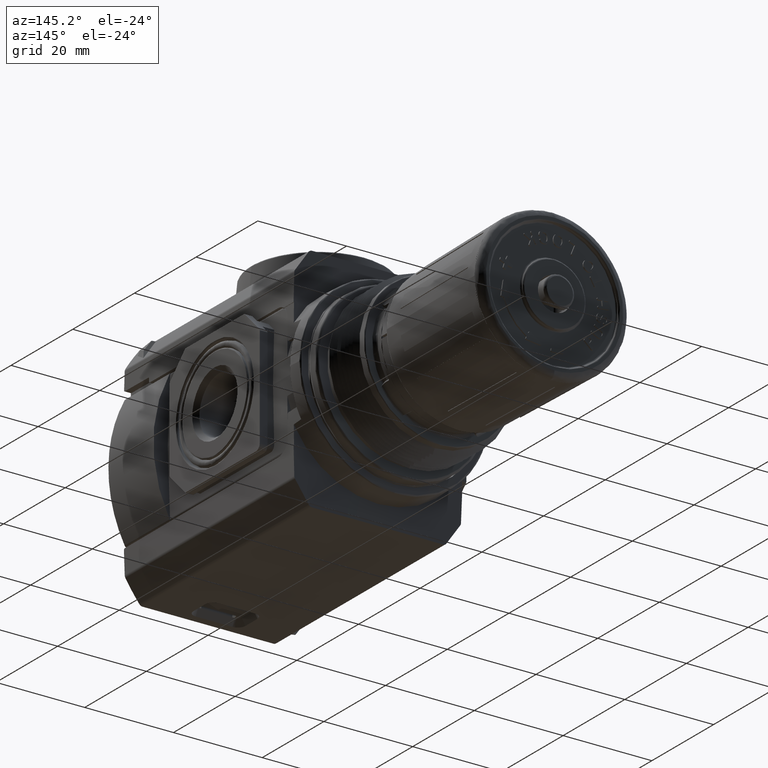
[diagram: clean part render]
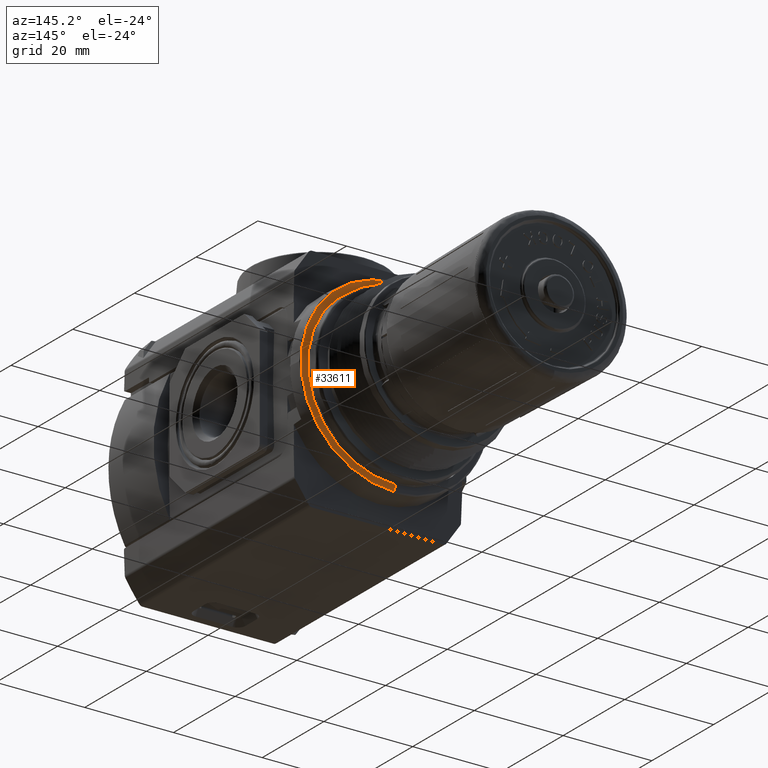
[diagram: same view with one face highlighted and labeled with its STEP entity id]
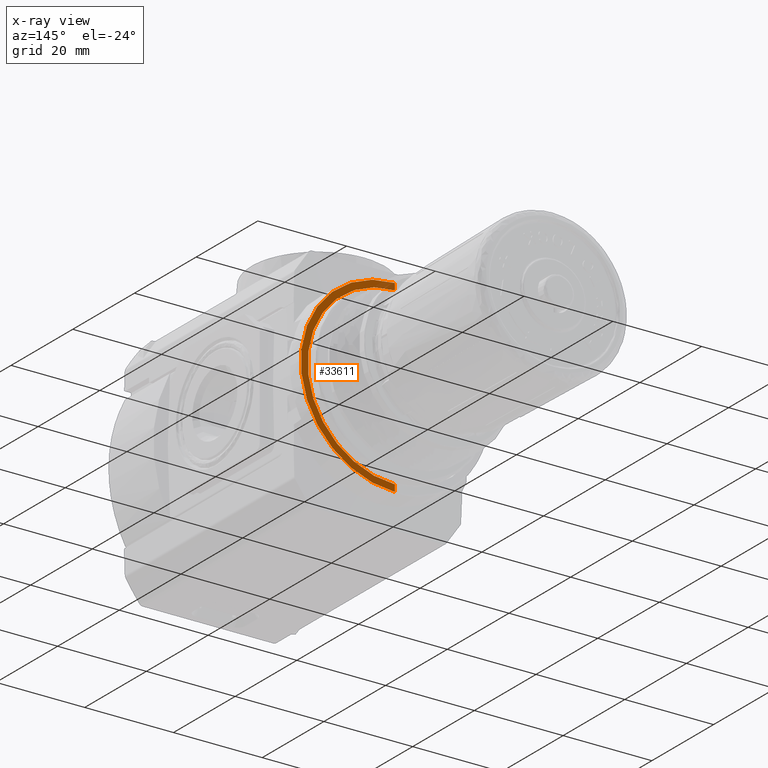
[diagram: x-ray of the same camera — body ghosted, the highlighted face saturated]
A machine part, auxiliary view. The second image highlights one B-rep face of the part: STEP entity #33611.
The next image is the same camera in x-ray: the body ghosted, the highlighted face saturated — about 6% of this face is hidden behind the body in this view.
In plain terms, the highlighted conical surface has half-angle 88 deg.
Its self-contained STEP definition (entity closure, byte-faithful):
#147 = VECTOR ( 'NONE', #9584, 39.37007874015748143 ) ;
#1104 = CARTESIAN_POINT ( 'NONE',  ( 0.000000000000000000, 2.385825571031360059, -0.7736564285650251449 ) ) ;
#5614 = ORIENTED_EDGE ( 'NONE', *, *, #7530, .T. ) ;
#5835 = DIRECTION ( 'NONE',  ( 0.000000000000000000, -1.000000000000000000, 0.000000000000000000 ) ) ;
#6787 = DIRECTION ( 'NONE',  ( 1.223900777408084576E-16, -0.03489949665753781100, 0.9993908270206659505 ) ) ;
#6955 = CARTESIAN_POINT ( 'NONE',  ( 0.000000000000000000, 2.383745076119717865, 0.000000000000000000 ) ) ;
#7530 = EDGE_CURVE ( 'NONE', #40178, #53881, #64172, .T. ) ;
#9584 = DIRECTION ( 'NONE',  ( 0.000000000000000000, -0.03489949665753781100, -0.9993908270206659505 ) ) ;
#12578 = AXIS2_PLACEMENT_3D ( 'NONE', #28562, #22864, #63292 ) ;
#12991 = ORIENTED_EDGE ( 'NONE', *, *, #34535, .F. ) ;
#13507 = CARTESIAN_POINT ( 'NONE',  ( 0.000000000000000000, 2.383745076117018691, -0.8332340079628296481 ) ) ;
#17314 = EDGE_LOOP ( 'NONE', ( #59396, #5614, #42771, #12991 ) ) ;
#18274 = FACE_OUTER_BOUND ( 'NONE', #17314, .T. ) ;
#20604 = VERTEX_POINT ( 'NONE', #1104 ) ;
#22380 = CARTESIAN_POINT ( 'NONE',  ( 0.000000000000000000, 2.383745076119717865, -0.8332340078855307031 ) ) ;
#22864 = DIRECTION ( 'NONE',  ( 0.000000000000000000, -1.000000000000000000, -0.000000000000000000 ) ) ;
#23159 = CIRCLE ( 'NONE', #63004, 0.7736564285650251449 ) ;
#23392 = CIRCLE ( 'NONE', #12578, 0.8332340078854364451 ) ;
#28562 = CARTESIAN_POINT ( 'NONE',  ( 0.000000000000000000, 2.383745076117018691, 0.000000000000000000 ) ) ;
#28844 = DIRECTION ( 'NONE',  ( 0.000000000000000000, 0.000000000000000000, -1.000000000000000000 ) ) ;
#29059 = CARTESIAN_POINT ( 'NONE',  ( 1.020417360697735446E-16, 2.383745076119717865, 0.8332340078855307031 ) ) ;
#31271 = AXIS2_PLACEMENT_3D ( 'NONE', #6955, #5835, #28844 ) ;
#33611 = ADVANCED_FACE ( 'NONE', ( #18274 ), #40913, .T. ) ;
#34535 = EDGE_CURVE ( 'NONE', #20604, #38374, #74117, .T. ) ;
#35812 = CARTESIAN_POINT ( 'NONE',  ( 0.000000000000000000, 2.385825571031360059, 0.000000000000000000 ) ) ;
#38374 = VERTEX_POINT ( 'NONE', #13507 ) ;
#40178 = VERTEX_POINT ( 'NONE', #63210 ) ;
#40549 = EDGE_CURVE ( 'NONE', #20604, #40178, #23159, .T. ) ;
#40913 = CONICAL_SURFACE ( 'NONE', #31271, 0.8332340078855307031, 1.535889741800000596 ) ;
#42771 = ORIENTED_EDGE ( 'NONE', *, *, #63665, .F. ) ;
#49331 = VECTOR ( 'NONE', #6787, 39.37007874015748143 ) ;
#50979 = CARTESIAN_POINT ( 'NONE',  ( 1.020417360792399371E-16, 2.383745076117018691, 0.8332340079628296481 ) ) ;
#53881 = VERTEX_POINT ( 'NONE', #50979 ) ;
#59396 = ORIENTED_EDGE ( 'NONE', *, *, #40549, .T. ) ;
#63004 = AXIS2_PLACEMENT_3D ( 'NONE', #35812, #64894, #69449 ) ;
#63210 = CARTESIAN_POINT ( 'NONE',  ( 9.839366147897755336E-17, 2.385825571031360059, 0.7736564285650251449 ) ) ;
#63292 = DIRECTION ( 'NONE',  ( 0.000000000000000000, 0.000000000000000000, -1.000000000000000000 ) ) ;
#63665 = EDGE_CURVE ( 'NONE', #38374, #53881, #23392, .T. ) ;
#64172 = LINE ( 'NONE', #29059, #49331 ) ;
#64894 = DIRECTION ( 'NONE',  ( -0.000000000000000000, -1.000000000000000000, -0.000000000000000000 ) ) ;
#69449 = DIRECTION ( 'NONE',  ( 0.000000000000000000, 2.471760751877805306E-15, -1.000000000000000000 ) ) ;
#74117 = LINE ( 'NONE', #22380, #147 ) ;